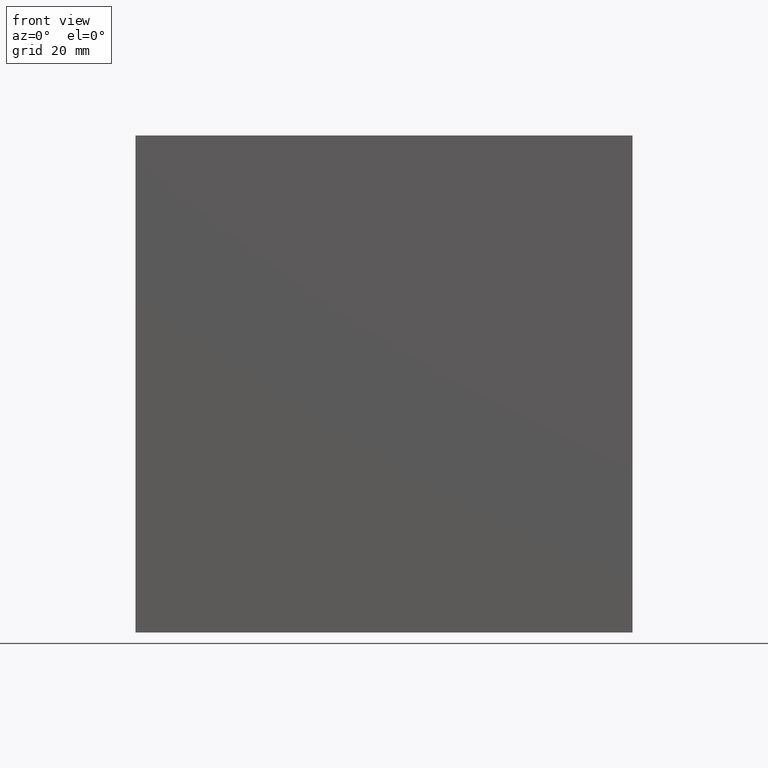
[diagram: clean part render]
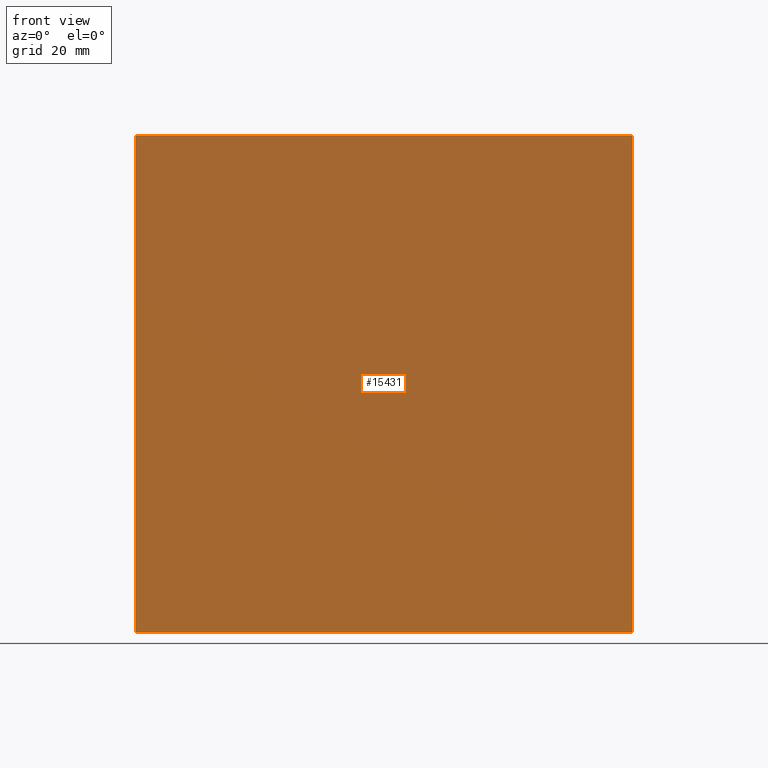
[diagram: same view with one face highlighted and labeled with its STEP entity id]
A machine part, front view. The second image highlights one B-rep face of the part: STEP entity #15431.
In plain terms, the highlighted planar face has unit normal (0, 1, 0).
Its self-contained STEP definition (entity closure, byte-faithful):
#404 = CARTESIAN_POINT ( 'NONE',  ( 98.00000000000000000, 0.0000000000000000000, 0.0000000000000000000 ) ) ;
#792 = DIRECTION ( 'NONE',  ( 1.000000000000000000, 0.0000000000000000000, 0.0000000000000000000 ) ) ;
#1143 = DIRECTION ( 'NONE',  ( 1.224646799147353207E-16, 0.0000000000000000000, 1.000000000000000000 ) ) ;
#1345 = EDGE_CURVE ( 'NONE', #9358, #7000, #16054, .T. ) ;
#1599 = DIRECTION ( 'NONE',  ( 0.0000000000000000000, 1.000000000000000000, 0.0000000000000000000 ) ) ;
#2048 = DIRECTION ( 'NONE',  ( -1.416100796715760863E-16, -0.0000000000000000000, -1.000000000000000000 ) ) ;
#2992 = ORIENTED_EDGE ( 'NONE', *, *, #11688, .F. ) ;
#3655 = LINE ( 'NONE', #5297, #10957 ) ;
#4437 = ORIENTED_EDGE ( 'NONE', *, *, #1345, .F. ) ;
#5205 = LINE ( 'NONE', #17651, #11471 ) ;
#5297 = CARTESIAN_POINT ( 'NONE',  ( 0.0000000000000000000, 0.0000000000000000000, 0.0000000000000000000 ) ) ;
#6464 = LINE ( 'NONE', #13679, #12100 ) ;
#7000 = VERTEX_POINT ( 'NONE', #17023 ) ;
#8420 = CARTESIAN_POINT ( 'NONE',  ( 0.0000000000000000000, 0.0000000000000000000, 0.0000000000000000000 ) ) ;
#8573 = CARTESIAN_POINT ( 'NONE',  ( 0.0000000000000000000, 0.0000000000000000000, 0.0000000000000000000 ) ) ;
#8865 = EDGE_CURVE ( 'NONE', #10131, #9358, #5205, .T. ) ;
#9018 = ORIENTED_EDGE ( 'NONE', *, *, #9361, .F. ) ;
#9358 = VERTEX_POINT ( 'NONE', #16258 ) ;
#9361 = EDGE_CURVE ( 'NONE', #11012, #10131, #6464, .T. ) ;
#10131 = VERTEX_POINT ( 'NONE', #17372 ) ;
#10768 = VECTOR ( 'NONE', #2048, 1000.000000000000000 ) ;
#10841 = DIRECTION ( 'NONE',  ( -1.000000000000000000, -0.0000000000000000000, -0.0000000000000000000 ) ) ;
#10941 = EDGE_LOOP ( 'NONE', ( #9018, #2992, #4437, #15220 ) ) ;
#10957 = VECTOR ( 'NONE', #10841, 1000.000000000000000 ) ;
#11012 = VERTEX_POINT ( 'NONE', #8420 ) ;
#11471 = VECTOR ( 'NONE', #792, 1000.000000000000000 ) ;
#11688 = EDGE_CURVE ( 'NONE', #7000, #11012, #3655, .T. ) ;
#12100 = VECTOR ( 'NONE', #1143, 1000.000000000000000 ) ;
#12830 = DIRECTION ( 'NONE',  ( 0.0000000000000000000, -0.0000000000000000000, 1.000000000000000000 ) ) ;
#13305 = AXIS2_PLACEMENT_3D ( 'NONE', #8573, #1599, #12830 ) ;
#13679 = CARTESIAN_POINT ( 'NONE',  ( 0.0000000000000000000, 0.0000000000000000000, 0.0000000000000000000 ) ) ;
#15220 = ORIENTED_EDGE ( 'NONE', *, *, #8865, .F. ) ;
#15431 = ADVANCED_FACE ( 'NONE', ( #15584 ), #17148, .F. ) ;
#15584 = FACE_OUTER_BOUND ( 'NONE', #10941, .T. ) ;
#16054 = LINE ( 'NONE', #404, #10768 ) ;
#16258 = CARTESIAN_POINT ( 'NONE',  ( 98.00000000000001421, 0.0000000000000000000, 98.00000000000000000 ) ) ;
#17023 = CARTESIAN_POINT ( 'NONE',  ( 98.00000000000000000, 0.0000000000000000000, 0.0000000000000000000 ) ) ;
#17148 = PLANE ( 'NONE',  #13305 ) ;
#17372 = CARTESIAN_POINT ( 'NONE',  ( 1.200153863164406030E-14, 0.0000000000000000000, 98.00000000000000000 ) ) ;
#17651 = CARTESIAN_POINT ( 'NONE',  ( 1.200153863164406030E-14, 0.0000000000000000000, 98.00000000000000000 ) ) ;